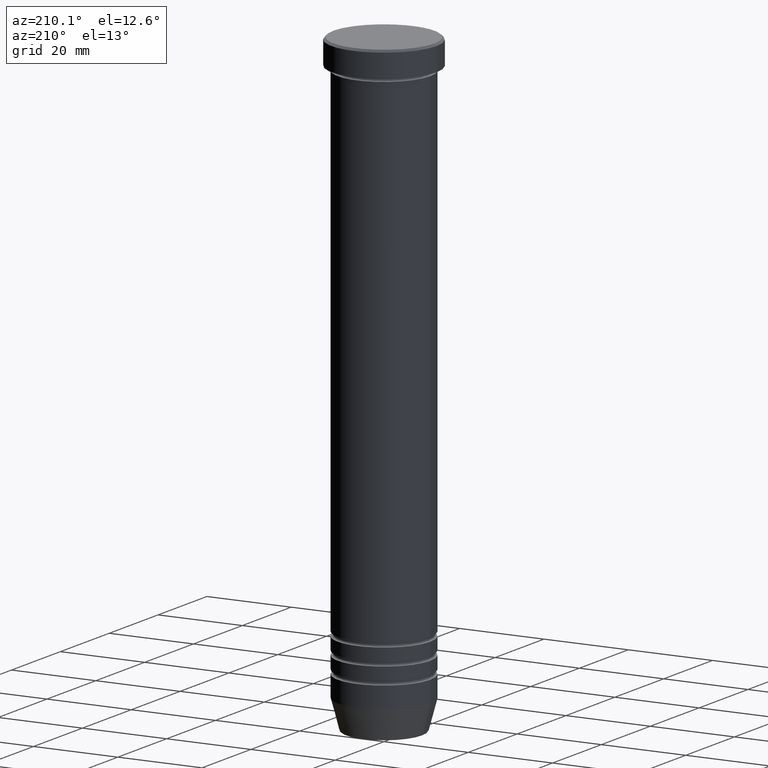
[diagram: clean part render]
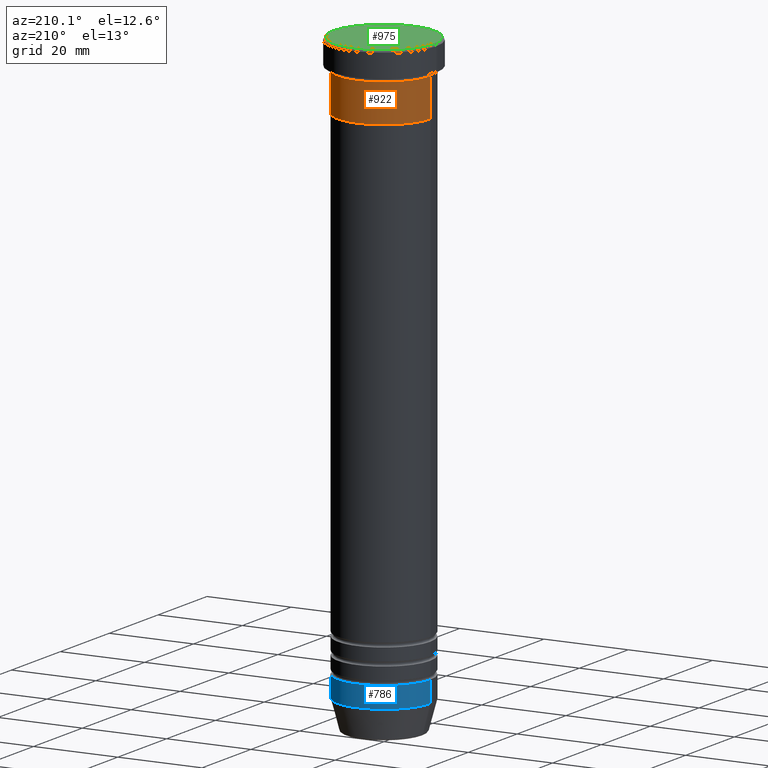
[diagram: same view with three faces highlighted in distinct colors, each labeled with its STEP entity id]
A machine part, auxiliary view with three faces highlighted in distinct colors.
Their STEP definitions:

[orange] entity #922 — the highlighted cylindrical surface (partial cylindrical patch) has radius 11 mm, axis along (-0, -0, 1).
#58 = AXIS2_PLACEMENT_3D ( 'NONE', #1124, #216, #1028 ) ;
#74 = LINE ( 'NONE', #1144, #649 ) ;
#159 = VERTEX_POINT ( 'NONE', #634 ) ;
#200 = CYLINDRICAL_SURFACE ( 'NONE', #468, 11.00000000000000000 ) ;
#216 = DIRECTION ( 'NONE',  ( -0.000000000000000000, -0.000000000000000000, 1.000000000000000000 ) ) ;
#225 = VERTEX_POINT ( 'NONE', #748 ) ;
#226 = EDGE_CURVE ( 'NONE', #225, #753, #1005, .T. ) ;
#298 = CIRCLE ( 'NONE', #312, 11.00000000000000000 ) ;
#312 = AXIS2_PLACEMENT_3D ( 'NONE', #647, #830, #735 ) ;
#319 = ORIENTED_EDGE ( 'NONE', *, *, #497, .F. ) ;
#321 = LINE ( 'NONE', #394, #633 ) ;
#343 = DIRECTION ( 'NONE',  ( -0.000000000000000000, -0.000000000000000000, 1.000000000000000000 ) ) ;
#370 = FACE_OUTER_BOUND ( 'NONE', #694, .T. ) ;
#382 = CARTESIAN_POINT ( 'NONE',  ( 0.000000000000000000, 0.000000000000000000, 0.000000000000000000 ) ) ;
#394 = CARTESIAN_POINT ( 'NONE',  ( -11.00000000000000000, 1.347111479062088405E-15, 0.000000000000000000 ) ) ;
#468 = AXIS2_PLACEMENT_3D ( 'NONE', #382, #722, #1083 ) ;
#493 = CARTESIAN_POINT ( 'NONE',  ( -11.00000000000000000, 1.347111479062088405E-15, -6.999999999999999112 ) ) ;
#497 = EDGE_CURVE ( 'NONE', #159, #1112, #298, .T. ) ;
#633 = VECTOR ( 'NONE', #844, 1000.000000000000000 ) ;
#634 = CARTESIAN_POINT ( 'NONE',  ( 11.00000000000000000, 0.000000000000000000, -6.999999999999999112 ) ) ;
#635 = ORIENTED_EDGE ( 'NONE', *, *, #854, .F. ) ;
#647 = CARTESIAN_POINT ( 'NONE',  ( 0.000000000000000000, 0.000000000000000000, -6.999999999999999112 ) ) ;
#649 = VECTOR ( 'NONE', #343, 1000.000000000000000 ) ;
#694 = EDGE_LOOP ( 'NONE', ( #1060, #809, #319, #635 ) ) ;
#722 = DIRECTION ( 'NONE',  ( -0.000000000000000000, -0.000000000000000000, 1.000000000000000000 ) ) ;
#735 = DIRECTION ( 'NONE',  ( 1.000000000000000000, 0.000000000000000000, 0.000000000000000000 ) ) ;
#748 = CARTESIAN_POINT ( 'NONE',  ( 11.00000000000000000, 0.000000000000000000, -16.00000000000000000 ) ) ;
#753 = VERTEX_POINT ( 'NONE', #1100 ) ;
#809 = ORIENTED_EDGE ( 'NONE', *, *, #1121, .T. ) ;
#830 = DIRECTION ( 'NONE',  ( -0.000000000000000000, -0.000000000000000000, 1.000000000000000000 ) ) ;
#844 = DIRECTION ( 'NONE',  ( -0.000000000000000000, -0.000000000000000000, 1.000000000000000000 ) ) ;
#854 = EDGE_CURVE ( 'NONE', #225, #159, #74, .T. ) ;
#922 = ADVANCED_FACE ( 'NONE', ( #370 ), #200, .T. ) ;
#1005 = CIRCLE ( 'NONE', #58, 11.00000000000000000 ) ;
#1028 = DIRECTION ( 'NONE',  ( 1.000000000000000000, 0.000000000000000000, 0.000000000000000000 ) ) ;
#1060 = ORIENTED_EDGE ( 'NONE', *, *, #226, .T. ) ;
#1083 = DIRECTION ( 'NONE',  ( 1.000000000000000000, 0.000000000000000000, 0.000000000000000000 ) ) ;
#1100 = CARTESIAN_POINT ( 'NONE',  ( -11.00000000000000000, 1.347111479062088405E-15, -16.00000000000000000 ) ) ;
#1112 = VERTEX_POINT ( 'NONE', #493 ) ;
#1121 = EDGE_CURVE ( 'NONE', #753, #1112, #321, .T. ) ;
#1124 = CARTESIAN_POINT ( 'NONE',  ( 0.000000000000000000, 0.000000000000000000, -16.00000000000000000 ) ) ;
#1144 = CARTESIAN_POINT ( 'NONE',  ( 11.00000000000000000, 0.000000000000000000, 0.000000000000000000 ) ) ;

[blue] entity #786 — the highlighted cylindrical surface (partial cylindrical patch) has radius 11 mm, axis along (-0, -0, 1).
#12 = EDGE_CURVE ( 'NONE', #972, #178, #362, .T. ) ;
#28 = VERTEX_POINT ( 'NONE', #638 ) ;
#47 = DIRECTION ( 'NONE',  ( -0.000000000000000000, -0.000000000000000000, 1.000000000000000000 ) ) ;
#60 = CARTESIAN_POINT ( 'NONE',  ( 0.000000000000000000, 0.000000000000000000, -134.0000000000000000 ) ) ;
#165 = FACE_OUTER_BOUND ( 'NONE', #177, .T. ) ;
#177 = EDGE_LOOP ( 'NONE', ( #1024, #941, #901, #393 ) ) ;
#178 = VERTEX_POINT ( 'NONE', #401 ) ;
#195 = EDGE_CURVE ( 'NONE', #628, #28, #860, .T. ) ;
#218 = VECTOR ( 'NONE', #47, 1000.000000000000000 ) ;
#242 = EDGE_CURVE ( 'NONE', #28, #178, #499, .T. ) ;
#263 = CARTESIAN_POINT ( 'NONE',  ( -11.00000000000000178, 1.347111479062088602E-15, 0.000000000000000000 ) ) ;
#308 = DIRECTION ( 'NONE',  ( 1.000000000000000000, 0.000000000000000000, 0.000000000000000000 ) ) ;
#362 = LINE ( 'NONE', #263, #608 ) ;
#393 = ORIENTED_EDGE ( 'NONE', *, *, #195, .F. ) ;
#401 = CARTESIAN_POINT ( 'NONE',  ( -11.00000000000000178, 1.347111479062088602E-15, -134.0000000000000000 ) ) ;
#411 = DIRECTION ( 'NONE',  ( -0.000000000000000000, -0.000000000000000000, 1.000000000000000000 ) ) ;
#450 = CIRCLE ( 'NONE', #1116, 11.00000000000000178 ) ;
#499 = CIRCLE ( 'NONE', #757, 11.00000000000000178 ) ;
#566 = DIRECTION ( 'NONE',  ( -0.000000000000000000, -0.000000000000000000, 1.000000000000000000 ) ) ;
#598 = CARTESIAN_POINT ( 'NONE',  ( 0.000000000000000000, 0.000000000000000000, 0.000000000000000000 ) ) ;
#608 = VECTOR ( 'NONE', #697, 1000.000000000000000 ) ;
#628 = VERTEX_POINT ( 'NONE', #754 ) ;
#638 = CARTESIAN_POINT ( 'NONE',  ( 11.00000000000000178, 0.000000000000000000, -134.0000000000000000 ) ) ;
#691 = EDGE_CURVE ( 'NONE', #628, #972, #450, .T. ) ;
#695 = CYLINDRICAL_SURFACE ( 'NONE', #1081, 11.00000000000000178 ) ;
#697 = DIRECTION ( 'NONE',  ( -0.000000000000000000, -0.000000000000000000, 1.000000000000000000 ) ) ;
#754 = CARTESIAN_POINT ( 'NONE',  ( 11.00000000000000178, 0.000000000000000000, -139.0000000000000000 ) ) ;
#756 = CARTESIAN_POINT ( 'NONE',  ( 11.00000000000000178, 0.000000000000000000, 0.000000000000000000 ) ) ;
#757 = AXIS2_PLACEMENT_3D ( 'NONE', #60, #411, #925 ) ;
#786 = ADVANCED_FACE ( 'NONE', ( #165 ), #695, .T. ) ;
#860 = LINE ( 'NONE', #756, #218 ) ;
#901 = ORIENTED_EDGE ( 'NONE', *, *, #242, .F. ) ;
#914 = CARTESIAN_POINT ( 'NONE',  ( -11.00000000000000178, 1.347111479062088602E-15, -139.0000000000000000 ) ) ;
#925 = DIRECTION ( 'NONE',  ( 1.000000000000000000, 0.000000000000000000, 0.000000000000000000 ) ) ;
#938 = CARTESIAN_POINT ( 'NONE',  ( 0.000000000000000000, 0.000000000000000000, -139.0000000000000000 ) ) ;
#941 = ORIENTED_EDGE ( 'NONE', *, *, #12, .T. ) ;
#972 = VERTEX_POINT ( 'NONE', #914 ) ;
#974 = DIRECTION ( 'NONE',  ( -0.000000000000000000, -0.000000000000000000, 1.000000000000000000 ) ) ;
#1024 = ORIENTED_EDGE ( 'NONE', *, *, #691, .T. ) ;
#1047 = DIRECTION ( 'NONE',  ( 1.000000000000000000, 0.000000000000000000, 0.000000000000000000 ) ) ;
#1081 = AXIS2_PLACEMENT_3D ( 'NONE', #598, #974, #1047 ) ;
#1116 = AXIS2_PLACEMENT_3D ( 'NONE', #938, #566, #308 ) ;

[green] entity #975 — the highlighted planar face has unit normal (0, -0, 1).
#147 = EDGE_LOOP ( 'NONE', ( #237, #536 ) ) ;
#150 = AXIS2_PLACEMENT_3D ( 'NONE', #354, #246, #804 ) ;
#171 = AXIS2_PLACEMENT_3D ( 'NONE', #293, #1000, #275 ) ;
#182 = VERTEX_POINT ( 'NONE', #480 ) ;
#211 = DIRECTION ( 'NONE',  ( -0.000000000000000000, -0.000000000000000000, 1.000000000000000000 ) ) ;
#227 = DIRECTION ( 'NONE',  ( 1.000000000000000000, 0.000000000000000000, 0.000000000000000000 ) ) ;
#237 = ORIENTED_EDGE ( 'NONE', *, *, #620, .T. ) ;
#246 = DIRECTION ( 'NONE',  ( -0.000000000000000000, -0.000000000000000000, 1.000000000000000000 ) ) ;
#256 = VERTEX_POINT ( 'NONE', #1034 ) ;
#275 = DIRECTION ( 'NONE',  ( 1.000000000000000000, 0.000000000000000000, 0.000000000000000000 ) ) ;
#293 = CARTESIAN_POINT ( 'NONE',  ( 0.000000000000000000, 0.000000000000000000, 0.000000000000000000 ) ) ;
#299 = AXIS2_PLACEMENT_3D ( 'NONE', #676, #211, #227 ) ;
#354 = CARTESIAN_POINT ( 'NONE',  ( 0.000000000000000000, 0.000000000000000000, 0.000000000000000000 ) ) ;
#480 = CARTESIAN_POINT ( 'NONE',  ( 12.00000000000000355, 1.500192328955507734E-15, 0.000000000000000000 ) ) ;
#536 = ORIENTED_EDGE ( 'NONE', *, *, #908, .T. ) ;
#537 = PLANE ( 'NONE',  #171 ) ;
#549 = FACE_OUTER_BOUND ( 'NONE', #147, .T. ) ;
#591 = CIRCLE ( 'NONE', #150, 12.00000000000000355 ) ;
#620 = EDGE_CURVE ( 'NONE', #256, #182, #802, .T. ) ;
#676 = CARTESIAN_POINT ( 'NONE',  ( 0.000000000000000000, 0.000000000000000000, 0.000000000000000000 ) ) ;
#802 = CIRCLE ( 'NONE', #299, 12.00000000000000355 ) ;
#804 = DIRECTION ( 'NONE',  ( 1.000000000000000000, 0.000000000000000000, 0.000000000000000000 ) ) ;
#908 = EDGE_CURVE ( 'NONE', #182, #256, #591, .T. ) ;
#975 = ADVANCED_FACE ( 'NONE', ( #549 ), #537, .T. ) ;
#1000 = DIRECTION ( 'NONE',  ( 0.000000000000000000, -0.000000000000000000, 1.000000000000000000 ) ) ;
#1034 = CARTESIAN_POINT ( 'NONE',  ( -12.00000000000000355, 0.000000000000000000, 0.000000000000000000 ) ) ;